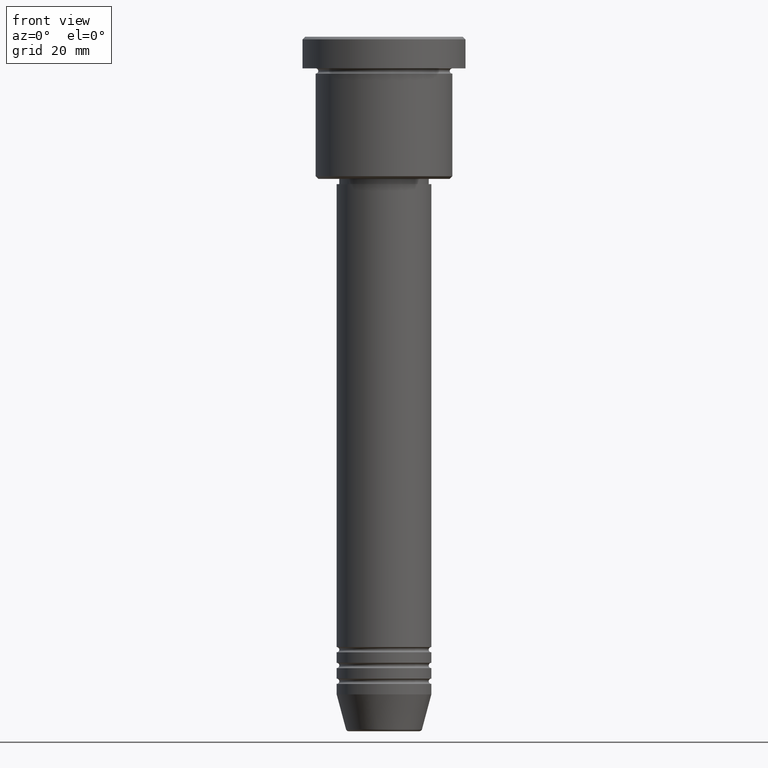
[diagram: clean part render]
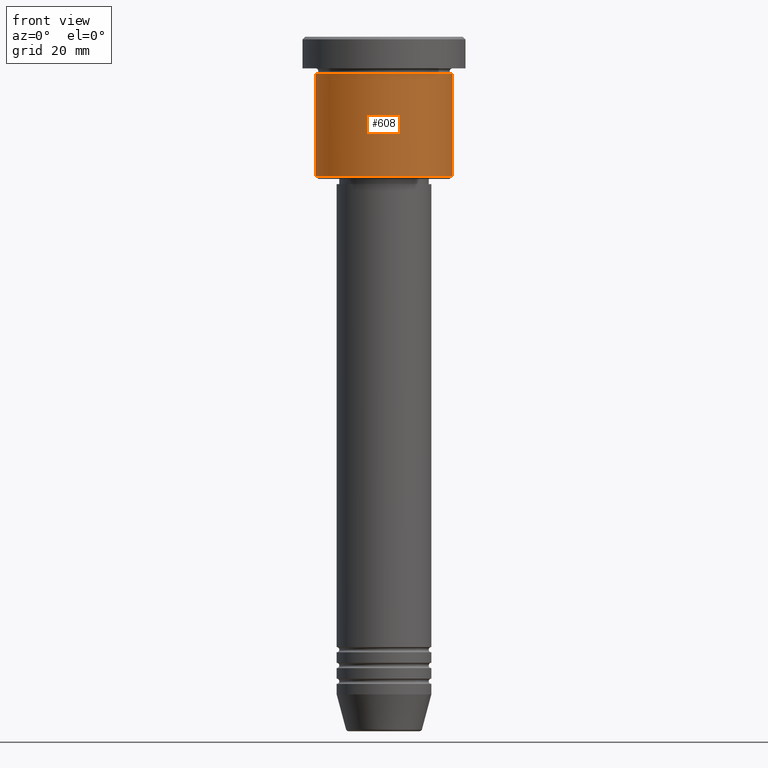
[diagram: same view with one face highlighted and labeled with its STEP entity id]
A machine part, front view. The second image highlights one B-rep face of the part: STEP entity #608.
In plain terms, the highlighted cylindrical surface (partial cylindrical patch) has radius 13 mm, axis along (-0, -0, 1).
Its self-contained STEP definition (entity closure, byte-faithful):
#21 = EDGE_CURVE ( 'NONE', #991, #940, #1031, .T. ) ;
#43 = DIRECTION ( 'NONE',  ( 1.000000000000000000, 0.000000000000000000, 0.000000000000000000 ) ) ;
#73 = EDGE_CURVE ( 'NONE', #581, #991, #769, .T. ) ;
#117 = DIRECTION ( 'NONE',  ( -0.000000000000000000, -0.000000000000000000, 1.000000000000000000 ) ) ;
#119 = CARTESIAN_POINT ( 'NONE',  ( 0.000000000000000000, 0.000000000000000000, -6.999999999999995559 ) ) ;
#249 = AXIS2_PLACEMENT_3D ( 'NONE', #432, #1141, #610 ) ;
#252 = CARTESIAN_POINT ( 'NONE',  ( 13.00000000000000000, 0.000000000000000000, -6.999999999999995559 ) ) ;
#259 = ORIENTED_EDGE ( 'NONE', *, *, #73, .T. ) ;
#266 = CYLINDRICAL_SURFACE ( 'NONE', #605, 13.00000000000000000 ) ;
#275 = ORIENTED_EDGE ( 'NONE', *, *, #418, .F. ) ;
#284 = CARTESIAN_POINT ( 'NONE',  ( -13.00000000000000000, 1.592040838891559095E-15, 0.000000000000000000 ) ) ;
#310 = VECTOR ( 'NONE', #598, 1000.000000000000000 ) ;
#341 = CARTESIAN_POINT ( 'NONE',  ( -13.00000000000000000, 1.592040838891559095E-15, -26.49999999999997513 ) ) ;
#418 = EDGE_CURVE ( 'NONE', #581, #738, #513, .T. ) ;
#432 = CARTESIAN_POINT ( 'NONE',  ( 0.000000000000000000, 0.000000000000000000, -26.49999999999997513 ) ) ;
#447 = CARTESIAN_POINT ( 'NONE',  ( 13.00000000000000000, 0.000000000000000000, -26.49999999999997513 ) ) ;
#511 = ORIENTED_EDGE ( 'NONE', *, *, #890, .F. ) ;
#513 = LINE ( 'NONE', #284, #310 ) ;
#557 = EDGE_LOOP ( 'NONE', ( #275, #259, #971, #511 ) ) ;
#581 = VERTEX_POINT ( 'NONE', #341 ) ;
#590 = CARTESIAN_POINT ( 'NONE',  ( 13.00000000000000000, 0.000000000000000000, 0.000000000000000000 ) ) ;
#598 = DIRECTION ( 'NONE',  ( -0.000000000000000000, -0.000000000000000000, 1.000000000000000000 ) ) ;
#605 = AXIS2_PLACEMENT_3D ( 'NONE', #639, #993, #906 ) ;
#608 = ADVANCED_FACE ( 'NONE', ( #726 ), #266, .T. ) ;
#610 = DIRECTION ( 'NONE',  ( -1.000000000000000000, 0.000000000000000000, 0.000000000000000000 ) ) ;
#625 = CIRCLE ( 'NONE', #1053, 13.00000000000000000 ) ;
#639 = CARTESIAN_POINT ( 'NONE',  ( 0.000000000000000000, 0.000000000000000000, 0.000000000000000000 ) ) ;
#726 = FACE_OUTER_BOUND ( 'NONE', #557, .T. ) ;
#738 = VERTEX_POINT ( 'NONE', #925 ) ;
#769 = CIRCLE ( 'NONE', #249, 13.00000000000000000 ) ;
#846 = VECTOR ( 'NONE', #117, 1000.000000000000000 ) ;
#864 = DIRECTION ( 'NONE',  ( -0.000000000000000000, -0.000000000000000000, 1.000000000000000000 ) ) ;
#890 = EDGE_CURVE ( 'NONE', #738, #940, #625, .T. ) ;
#906 = DIRECTION ( 'NONE',  ( 1.000000000000000000, 0.000000000000000000, 0.000000000000000000 ) ) ;
#925 = CARTESIAN_POINT ( 'NONE',  ( -13.00000000000000000, 1.592040838891559095E-15, -6.999999999999995559 ) ) ;
#940 = VERTEX_POINT ( 'NONE', #252 ) ;
#971 = ORIENTED_EDGE ( 'NONE', *, *, #21, .T. ) ;
#991 = VERTEX_POINT ( 'NONE', #447 ) ;
#993 = DIRECTION ( 'NONE',  ( -0.000000000000000000, -0.000000000000000000, 1.000000000000000000 ) ) ;
#1031 = LINE ( 'NONE', #590, #846 ) ;
#1053 = AXIS2_PLACEMENT_3D ( 'NONE', #119, #864, #43 ) ;
#1141 = DIRECTION ( 'NONE',  ( -0.000000000000000000, -0.000000000000000000, 1.000000000000000000 ) ) ;